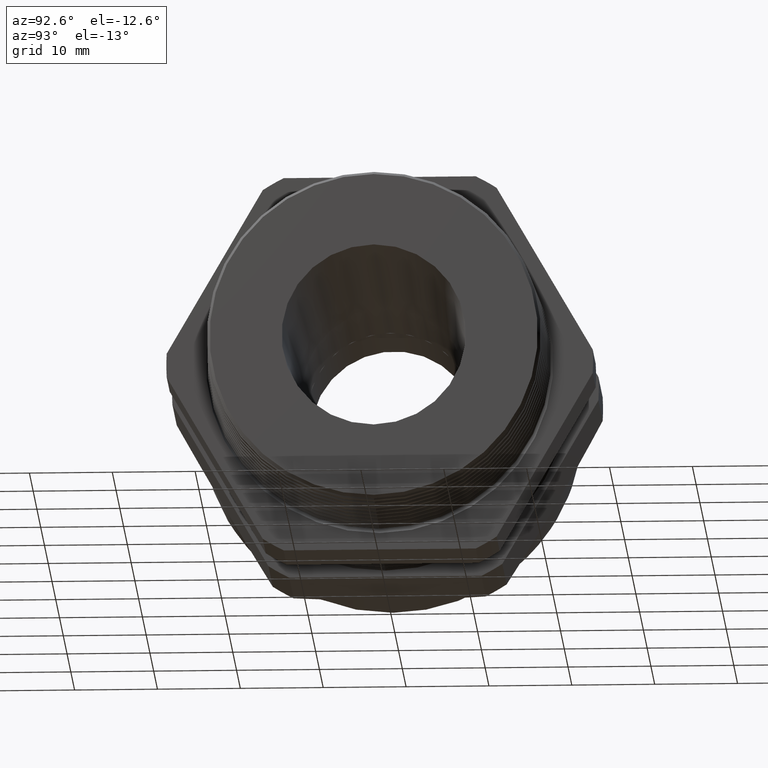
[diagram: clean part render]
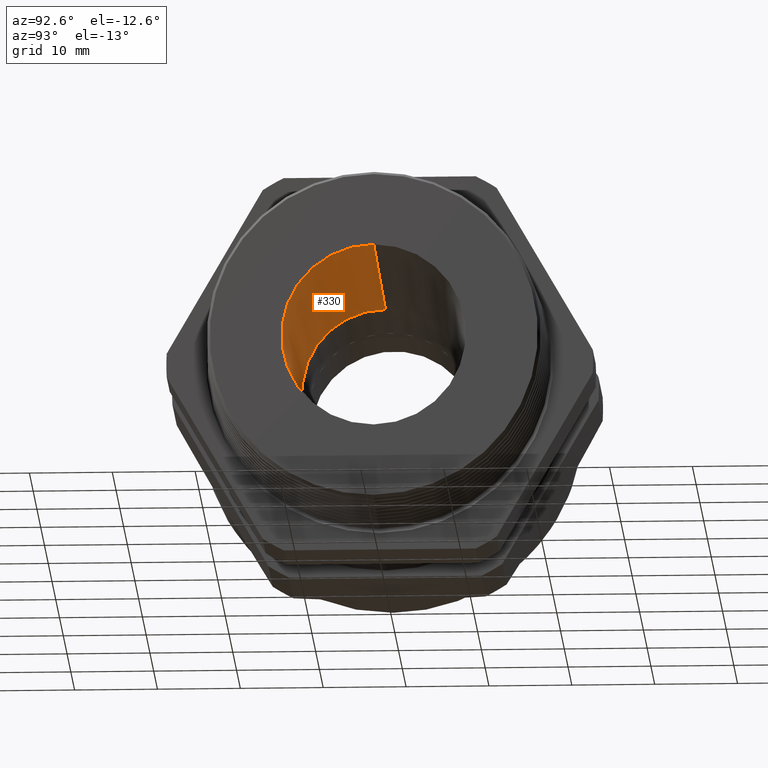
[diagram: same view with one face highlighted and labeled with its STEP entity id]
A machine part, auxiliary view. The second image highlights one B-rep face of the part: STEP entity #330.
In plain terms, the highlighted conical surface has half-angle 2 deg.
Its self-contained STEP definition (entity closure, byte-faithful):
#307 = ORIENTED_EDGE ( 'NONE', *, *, #324, .F. ) ;
#311 = VERTEX_POINT ( 'NONE', #1682 ) ;
#312 = ORIENTED_EDGE ( 'NONE', *, *, #326, .F. ) ;
#318 = EDGE_CURVE ( 'NONE', #320, #321, #1675, .T. ) ;
#320 = VERTEX_POINT ( 'NONE', #1728 ) ;
#321 = VERTEX_POINT ( 'NONE', #1727 ) ;
#324 = EDGE_CURVE ( 'NONE', #320, #311, #1718, .T. ) ;
#326 = EDGE_CURVE ( 'NONE', #311, #331, #1707, .T. ) ;
#330 = ADVANCED_FACE ( 'NONE', ( #1765 ), #1764, .F. ) ;
#331 = VERTEX_POINT ( 'NONE', #1759 ) ;
#337 = EDGE_LOOP ( 'NONE', ( #338, #340, #312, #307 ) ) ;
#338 = ORIENTED_EDGE ( 'NONE', *, *, #318, .T. ) ;
#340 = ORIENTED_EDGE ( 'NONE', *, *, #341, .T. ) ;
#341 = EDGE_CURVE ( 'NONE', #321, #331, #1748, .T. ) ;
#1675 = CIRCLE ( 'NONE', #1732, 0.3950000000000000200 ) ;
#1682 = CARTESIAN_POINT ( 'NONE',  ( 0.6299999999999997800, 0.0000000000000000000, -0.4378215935892566000 ) ) ;
#1704 = DIRECTION ( 'NONE',  ( 0.0000000000000000000, 0.0000000000000000000, 1.000000000000000000 ) ) ;
#1705 = DIRECTION ( 'NONE',  ( -1.000000000000000000, 0.0000000000000000000, 0.0000000000000000000 ) ) ;
#1706 = AXIS2_PLACEMENT_3D ( 'NONE', #1713, #1705, #1704 ) ;
#1707 = CIRCLE ( 'NONE', #1706, 0.4378215935892566000 ) ;
#1713 = CARTESIAN_POINT ( 'NONE',  ( 0.6299999999999997800, 0.0000000000000000000, 0.0000000000000000000 ) ) ;
#1715 = DIRECTION ( 'NONE',  ( 0.9993908270190957600, 0.0000000000000000000, -0.03489949670250170500 ) ) ;
#1716 = VECTOR ( 'NONE', #1715, 39.37007874015748900 ) ;
#1717 = CARTESIAN_POINT ( 'NONE',  ( -0.5962500000000000600, 0.0000000000000000000, -0.3950000000000000200 ) ) ;
#1718 = LINE ( 'NONE', #1717, #1716 ) ;
#1727 = CARTESIAN_POINT ( 'NONE',  ( -0.5962500000000000600, 5.099561494249404600E-017, 0.3950000000000000200 ) ) ;
#1728 = CARTESIAN_POINT ( 'NONE',  ( -0.5962500000000000600, 0.0000000000000000000, -0.3950000000000000200 ) ) ;
#1729 = DIRECTION ( 'NONE',  ( 0.0000000000000000000, 0.0000000000000000000, 1.000000000000000000 ) ) ;
#1730 = DIRECTION ( 'NONE',  ( -1.000000000000000000, 0.0000000000000000000, 0.0000000000000000000 ) ) ;
#1731 = CARTESIAN_POINT ( 'NONE',  ( -0.5962500000000000600, 0.0000000000000000000, 0.0000000000000000000 ) ) ;
#1732 = AXIS2_PLACEMENT_3D ( 'NONE', #1731, #1730, #1729 ) ;
#1745 = DIRECTION ( 'NONE',  ( 0.9993908270190957600, 4.273955692857231900E-018, 0.03489949670250170500 ) ) ;
#1746 = VECTOR ( 'NONE', #1745, 39.37007874015748900 ) ;
#1747 = CARTESIAN_POINT ( 'NONE',  ( -0.5962500000000000600, 4.837354856632045600E-017, 0.3950000000000000200 ) ) ;
#1748 = LINE ( 'NONE', #1747, #1746 ) ;
#1759 = CARTESIAN_POINT ( 'NONE',  ( 0.6299999999999997800, 5.361768131866763700E-017, 0.4378215935892566000 ) ) ;
#1760 = DIRECTION ( 'NONE',  ( 0.0000000000000000000, 0.0000000000000000000, -1.000000000000000000 ) ) ;
#1761 = DIRECTION ( 'NONE',  ( 1.000000000000000000, 0.0000000000000000000, 0.0000000000000000000 ) ) ;
#1762 = CARTESIAN_POINT ( 'NONE',  ( -0.5962500000000000600, 0.0000000000000000000, 0.0000000000000000000 ) ) ;
#1763 = AXIS2_PLACEMENT_3D ( 'NONE', #1762, #1761, #1760 ) ;
#1764 = CONICAL_SURFACE ( 'NONE', #1763, 0.3950000000000000200, 0.03490658503988732600 ) ;
#1765 = FACE_OUTER_BOUND ( 'NONE', #337, .T. ) ;